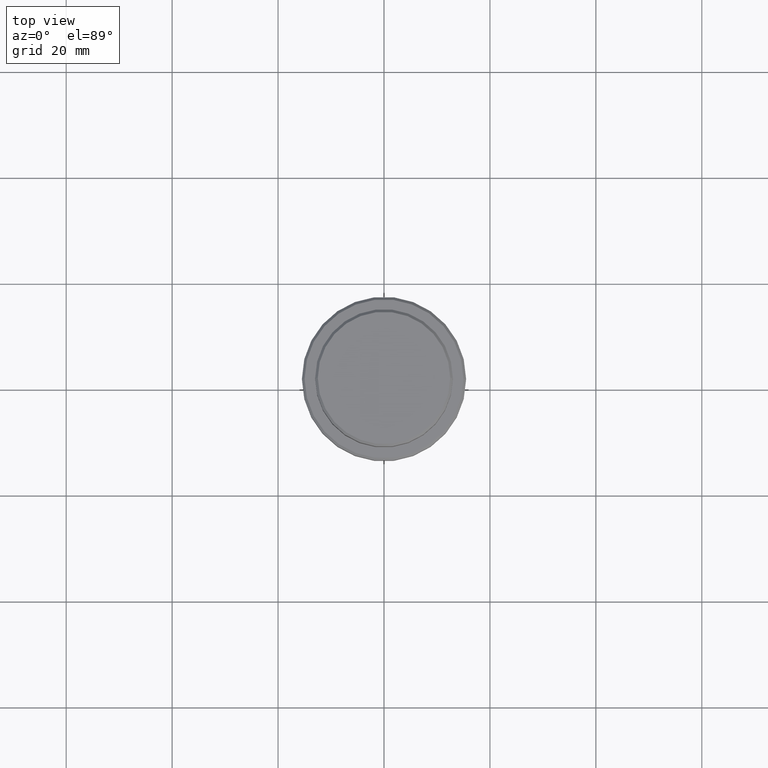
[diagram: clean part render]
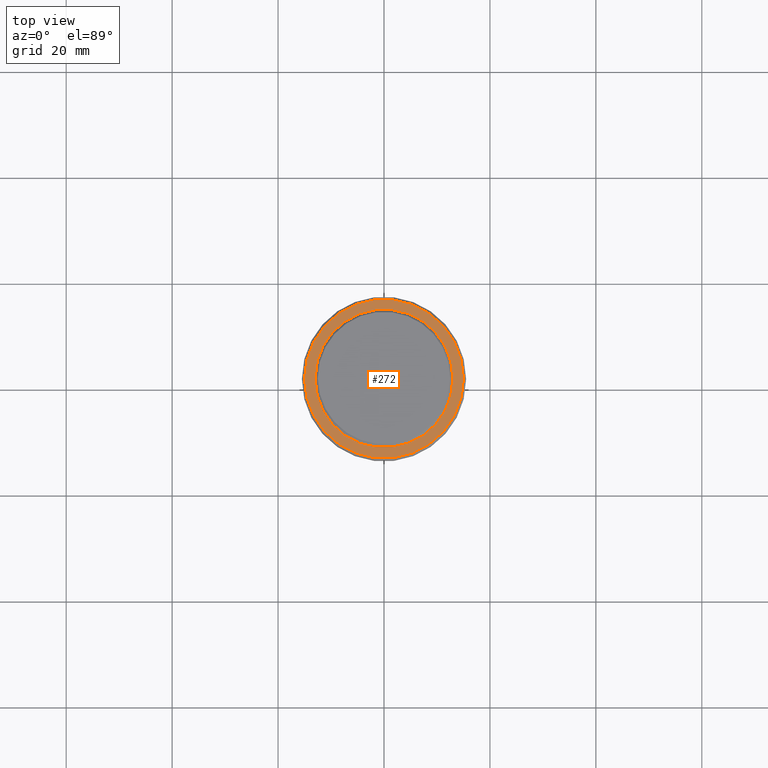
[diagram: same view with one face highlighted and labeled with its STEP entity id]
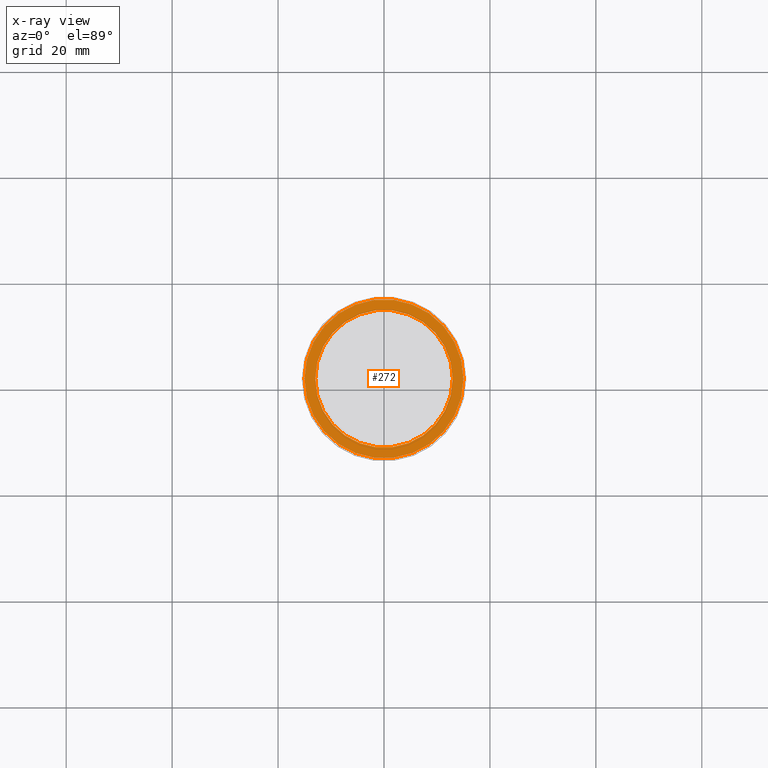
[diagram: x-ray of the same camera — body ghosted, the highlighted face saturated]
A machine part, top view. The second image highlights one B-rep face of the part: STEP entity #272.
The next image is the same camera in x-ray: the body ghosted, the highlighted face saturated — about 0% of this face is hidden behind the body in this view.
In plain terms, the highlighted planar face has unit normal (0, -0, 1).
Its self-contained STEP definition (entity closure, byte-faithful):
#32 = CARTESIAN_POINT ( 'NONE',  ( 15.00000000000002665, 1.867586368699715348E-15, -9.000000000000001776 ) ) ;
#78 = ORIENTED_EDGE ( 'NONE', *, *, #245, .T. ) ;
#112 = CARTESIAN_POINT ( 'NONE',  ( 0.000000000000000000, 0.000000000000000000, -9.000000000000001776 ) ) ;
#136 = EDGE_CURVE ( 'NONE', #408, #1082, #726, .T. ) ;
#151 = FACE_OUTER_BOUND ( 'NONE', #435, .T. ) ;
#152 = DIRECTION ( 'NONE',  ( 0.000000000000000000, 0.000000000000000000, -1.000000000000000000 ) ) ;
#179 = FACE_BOUND ( 'NONE', #1307, .T. ) ;
#245 = EDGE_CURVE ( 'NONE', #852, #918, #1074, .T. ) ;
#272 = ADVANCED_FACE ( 'NONE', ( #151, #179 ), #1386, .T. ) ;
#305 = CARTESIAN_POINT ( 'NONE',  ( 0.000000000000000000, 0.000000000000000000, -9.000000000000001776 ) ) ;
#309 = CARTESIAN_POINT ( 'NONE',  ( 12.99999999999999467, 0.000000000000000000, -9.000000000000001776 ) ) ;
#381 = CARTESIAN_POINT ( 'NONE',  ( 0.000000000000000000, 0.000000000000000000, -9.000000000000001776 ) ) ;
#395 = CIRCLE ( 'NONE', #583, 15.00000000000002665 ) ;
#408 = VERTEX_POINT ( 'NONE', #309 ) ;
#420 = AXIS2_PLACEMENT_3D ( 'NONE', #510, #152, #818 ) ;
#424 = DIRECTION ( 'NONE',  ( -0.000000000000000000, -0.000000000000000000, 1.000000000000000000 ) ) ;
#435 = EDGE_LOOP ( 'NONE', ( #78, #464 ) ) ;
#464 = ORIENTED_EDGE ( 'NONE', *, *, #1238, .T. ) ;
#494 = AXIS2_PLACEMENT_3D ( 'NONE', #381, #1291, #735 ) ;
#502 = DIRECTION ( 'NONE',  ( 0.000000000000000000, -0.000000000000000000, 1.000000000000000000 ) ) ;
#510 = CARTESIAN_POINT ( 'NONE',  ( 0.000000000000000000, 0.000000000000000000, -9.000000000000001776 ) ) ;
#546 = AXIS2_PLACEMENT_3D ( 'NONE', #850, #502, #1144 ) ;
#583 = AXIS2_PLACEMENT_3D ( 'NONE', #305, #424, #969 ) ;
#726 = CIRCLE ( 'NONE', #1160, 12.99999999999999467 ) ;
#735 = DIRECTION ( 'NONE',  ( 1.000000000000000000, 0.000000000000000000, 0.000000000000000000 ) ) ;
#758 = CARTESIAN_POINT ( 'NONE',  ( -15.00000000000002665, 0.000000000000000000, -9.000000000000001776 ) ) ;
#818 = DIRECTION ( 'NONE',  ( 1.000000000000000000, 0.000000000000000000, 0.000000000000000000 ) ) ;
#822 = CARTESIAN_POINT ( 'NONE',  ( -12.99999999999999467, 1.592040838891558504E-15, -9.000000000000001776 ) ) ;
#850 = CARTESIAN_POINT ( 'NONE',  ( 0.000000000000000000, 12.49999999999999289, -9.000000000000001776 ) ) ;
#852 = VERTEX_POINT ( 'NONE', #758 ) ;
#918 = VERTEX_POINT ( 'NONE', #32 ) ;
#949 = ORIENTED_EDGE ( 'NONE', *, *, #1402, .T. ) ;
#969 = DIRECTION ( 'NONE',  ( 1.000000000000000000, 0.000000000000000000, 0.000000000000000000 ) ) ;
#1002 = DIRECTION ( 'NONE',  ( 1.000000000000000000, 0.000000000000000000, 0.000000000000000000 ) ) ;
#1074 = CIRCLE ( 'NONE', #494, 15.00000000000002665 ) ;
#1082 = VERTEX_POINT ( 'NONE', #822 ) ;
#1113 = CIRCLE ( 'NONE', #420, 12.99999999999999467 ) ;
#1144 = DIRECTION ( 'NONE',  ( 1.000000000000000000, 0.000000000000000000, 0.000000000000000000 ) ) ;
#1160 = AXIS2_PLACEMENT_3D ( 'NONE', #112, #1250, #1002 ) ;
#1200 = ORIENTED_EDGE ( 'NONE', *, *, #136, .T. ) ;
#1238 = EDGE_CURVE ( 'NONE', #918, #852, #395, .T. ) ;
#1250 = DIRECTION ( 'NONE',  ( 0.000000000000000000, 0.000000000000000000, -1.000000000000000000 ) ) ;
#1291 = DIRECTION ( 'NONE',  ( -0.000000000000000000, -0.000000000000000000, 1.000000000000000000 ) ) ;
#1307 = EDGE_LOOP ( 'NONE', ( #1200, #949 ) ) ;
#1386 = PLANE ( 'NONE',  #546 ) ;
#1402 = EDGE_CURVE ( 'NONE', #1082, #408, #1113, .T. ) ;